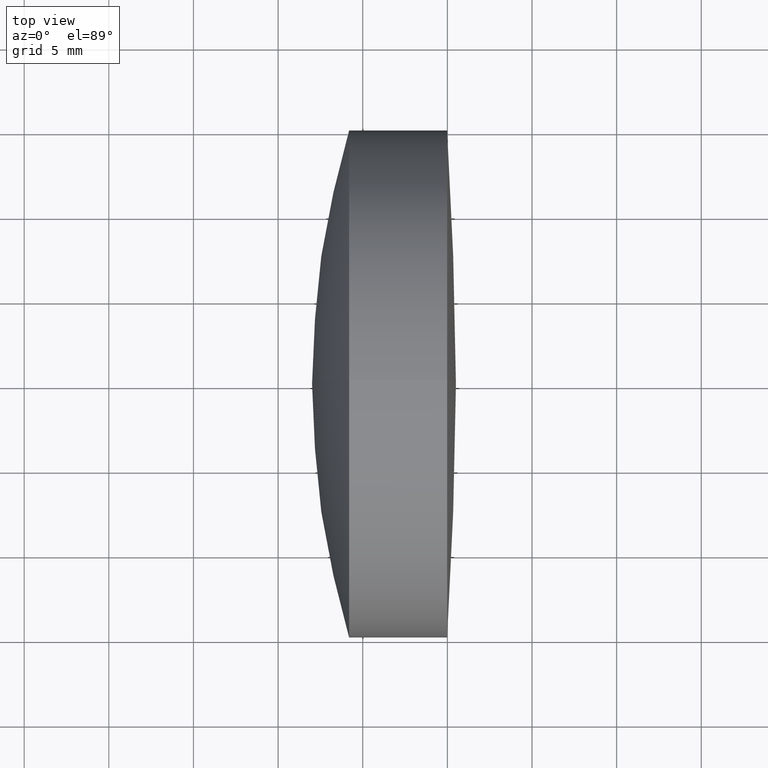
[diagram: clean part render]
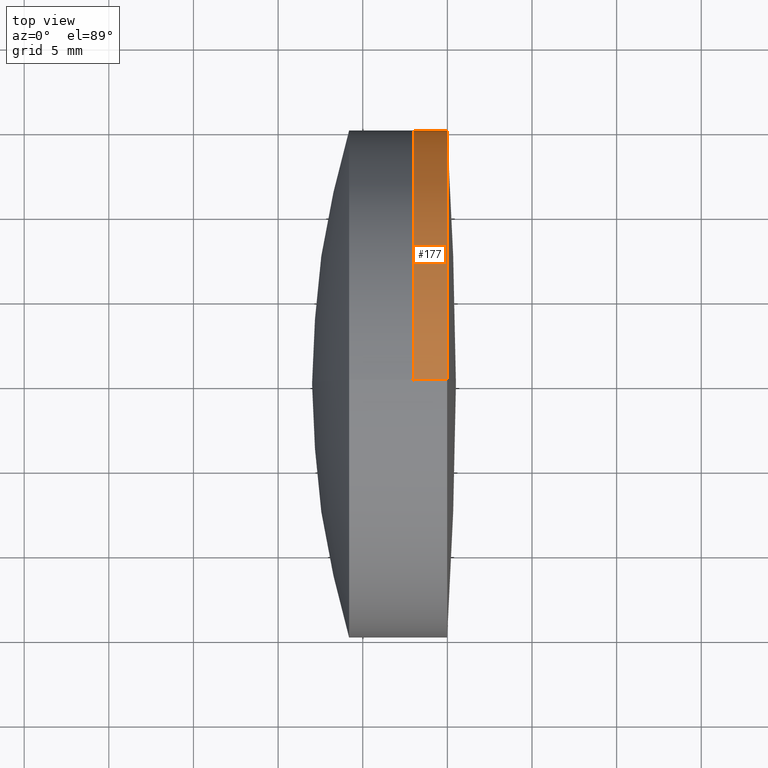
[diagram: same view with one face highlighted and labeled with its STEP entity id]
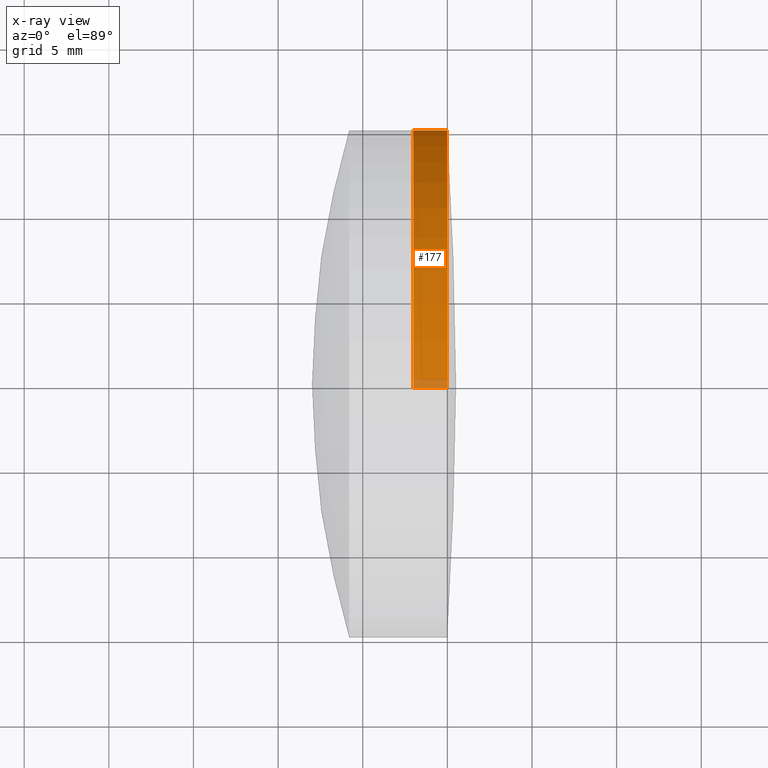
[diagram: x-ray of the same camera — body ghosted, the highlighted face saturated]
A machine part, top view. The second image highlights one B-rep face of the part: STEP entity #177.
The next image is the same camera in x-ray: the body ghosted, the highlighted face saturated — about 3% of this face is hidden behind the body in this view.
In plain terms, the highlighted cylindrical surface (partial cylindrical patch) has radius 15 mm, axis along (-1, -0, -0).
Its self-contained STEP definition (entity closure, byte-faithful):
#6 = CARTESIAN_POINT ( 'NONE',  ( 532.9862274353328100, 0.0000000000000000000, 0.0000000000000000000 ) ) ;
#11 = DIRECTION ( 'NONE',  ( 0.0000000000000000000, 0.0000000000000000000, 1.000000000000000000 ) ) ;
#12 = CIRCLE ( 'NONE', #173, 14.99999999999973900 ) ;
#38 = AXIS2_PLACEMENT_3D ( 'NONE', #148, #273, #11 ) ;
#39 = VERTEX_POINT ( 'NONE', #101 ) ;
#51 = CARTESIAN_POINT ( 'NONE',  ( 534.9862274353326900, 0.0000000000000000000, 14.99999999999961500 ) ) ;
#82 = VERTEX_POINT ( 'NONE', #284 ) ;
#83 = DIRECTION ( 'NONE',  ( 0.0000000000000000000, 0.0000000000000000000, 1.000000000000000000 ) ) ;
#101 = CARTESIAN_POINT ( 'NONE',  ( 532.9862274353328100, 0.0000000000000000000, 14.99999999999968700 ) ) ;
#103 = CYLINDRICAL_SURFACE ( 'NONE', #268, 14.99999999999967700 ) ;
#113 = DIRECTION ( 'NONE',  ( -1.000000000000000000, -0.0000000000000000000, -0.0000000000000000000 ) ) ;
#115 = CARTESIAN_POINT ( 'NONE',  ( -0.5519199926577972300, 0.0000000000000000000, 14.99999999999967700 ) ) ;
#142 = DIRECTION ( 'NONE',  ( -1.000000000000000000, -0.0000000000000000000, -0.0000000000000000000 ) ) ;
#148 = CARTESIAN_POINT ( 'NONE',  ( 534.9862274353326900, 0.0000000000000000000, 0.0000000000000000000 ) ) ;
#173 = AXIS2_PLACEMENT_3D ( 'NONE', #6, #142, #83 ) ;
#177 = ADVANCED_FACE ( 'NONE', ( #234 ), #103, .T. ) ;
#182 = CARTESIAN_POINT ( 'NONE',  ( -0.5519199926577972300, 1.836970198720990100E-015, -14.99999999999967700 ) ) ;
#186 = VECTOR ( 'NONE', #218, 1000.000000000000000 ) ;
#197 = ORIENTED_EDGE ( 'NONE', *, *, #272, .F. ) ;
#202 = ORIENTED_EDGE ( 'NONE', *, *, #252, .T. ) ;
#209 = CARTESIAN_POINT ( 'NONE',  ( -0.5519199926577972300, 0.0000000000000000000, 0.0000000000000000000 ) ) ;
#212 = VECTOR ( 'NONE', #113, 1000.000000000000000 ) ;
#218 = DIRECTION ( 'NONE',  ( -1.000000000000000000, -0.0000000000000000000, -0.0000000000000000000 ) ) ;
#224 = ORIENTED_EDGE ( 'NONE', *, *, #292, .F. ) ;
#225 = CIRCLE ( 'NONE', #38, 14.99999999999961500 ) ;
#234 = FACE_OUTER_BOUND ( 'NONE', #289, .T. ) ;
#240 = EDGE_CURVE ( 'NONE', #260, #246, #225, .T. ) ;
#246 = VERTEX_POINT ( 'NONE', #336 ) ;
#252 = EDGE_CURVE ( 'NONE', #246, #82, #293, .T. ) ;
#260 = VERTEX_POINT ( 'NONE', #51 ) ;
#267 = DIRECTION ( 'NONE',  ( 0.0000000000000000000, 0.0000000000000000000, 1.000000000000000000 ) ) ;
#268 = AXIS2_PLACEMENT_3D ( 'NONE', #209, #346, #267 ) ;
#272 = EDGE_CURVE ( 'NONE', #39, #82, #12, .T. ) ;
#273 = DIRECTION ( 'NONE',  ( -1.000000000000000000, -0.0000000000000000000, -0.0000000000000000000 ) ) ;
#275 = ORIENTED_EDGE ( 'NONE', *, *, #240, .T. ) ;
#284 = CARTESIAN_POINT ( 'NONE',  ( 532.9862274353328100, 1.836970198720991700E-015, -14.99999999999968700 ) ) ;
#289 = EDGE_LOOP ( 'NONE', ( #275, #202, #197, #224 ) ) ;
#292 = EDGE_CURVE ( 'NONE', #260, #39, #340, .T. ) ;
#293 = LINE ( 'NONE', #182, #212 ) ;
#336 = CARTESIAN_POINT ( 'NONE',  ( 534.9862274353326900, 1.836970198720986600E-015, -14.99999999999961500 ) ) ;
#340 = LINE ( 'NONE', #115, #186 ) ;
#346 = DIRECTION ( 'NONE',  ( -1.000000000000000000, -0.0000000000000000000, -0.0000000000000000000 ) ) ;